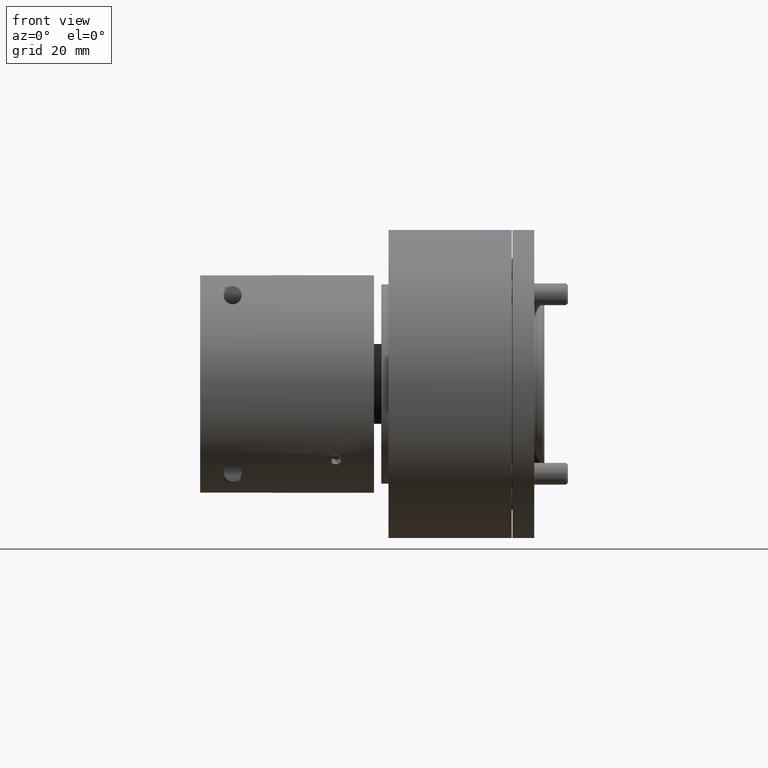
[diagram: clean part render]
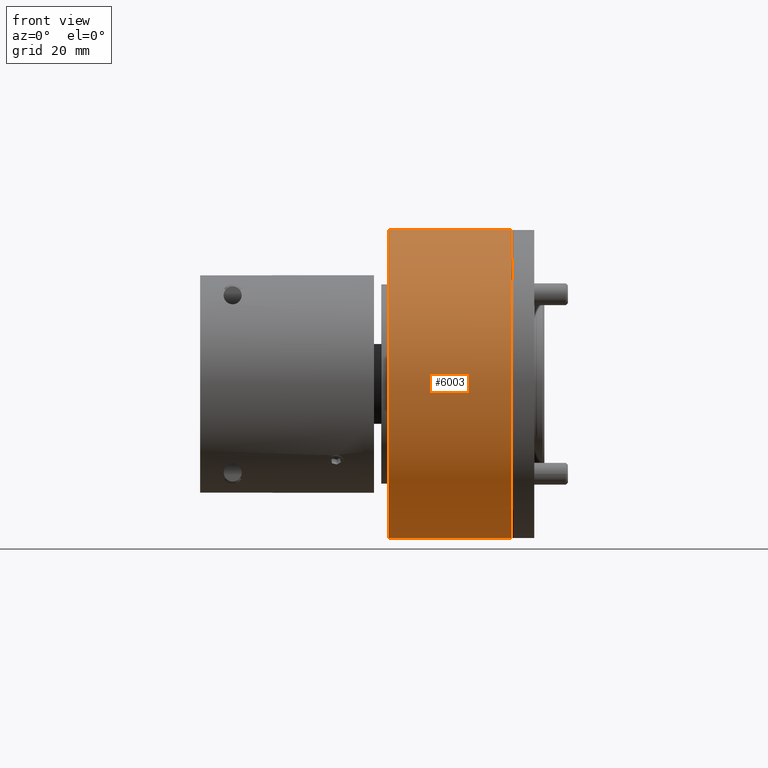
[diagram: same view with one face highlighted and labeled with its STEP entity id]
A machine part, front view. The second image highlights one B-rep face of the part: STEP entity #6003.
In plain terms, the highlighted cylindrical surface (partial cylindrical patch) has radius 42.5 mm, axis along (1, -0, 0).
Its self-contained STEP definition (entity closure, byte-faithful):
#1442 = CARTESIAN_POINT ( 'NONE',  ( 36.79999999999999716, 0.000000000000000000, 42.50000000000000000 ) ) ;
#1511 = AXIS2_PLACEMENT_3D ( 'NONE', #13622, #10612, #18260 ) ;
#1618 = VERTEX_POINT ( 'NONE', #1442 ) ;
#1980 = EDGE_CURVE ( 'NONE', #1618, #7163, #3476, .T. ) ;
#2029 = VECTOR ( 'NONE', #16698, 1000.000000000000000 ) ;
#2274 = VECTOR ( 'NONE', #9483, 1000.000000000000000 ) ;
#3160 = CIRCLE ( 'NONE', #10485, 42.50000000000000000 ) ;
#3313 = CARTESIAN_POINT ( 'NONE',  ( -39.25928614081220047, 5.204748896376250896E-15, -42.50000000000000000 ) ) ;
#3476 = LINE ( 'NONE', #16951, #2274 ) ;
#4515 = AXIS2_PLACEMENT_3D ( 'NONE', #14881, #15276, #16821 ) ;
#5068 = ORIENTED_EDGE ( 'NONE', *, *, #11164, .F. ) ;
#6003 = ADVANCED_FACE ( 'NONE', ( #13732 ), #14210, .T. ) ;
#7027 = CARTESIAN_POINT ( 'NONE',  ( 36.79999999999999716, 5.204748896376250896E-15, -42.50000000000000000 ) ) ;
#7163 = VERTEX_POINT ( 'NONE', #9914 ) ;
#7830 = ORIENTED_EDGE ( 'NONE', *, *, #15096, .F. ) ;
#8285 = DIRECTION ( 'NONE',  ( 0.000000000000000000, 0.000000000000000000, 1.000000000000000000 ) ) ;
#8755 = VERTEX_POINT ( 'NONE', #7027 ) ;
#9483 = DIRECTION ( 'NONE',  ( -1.000000000000000000, -0.000000000000000000, -0.000000000000000000 ) ) ;
#9566 = CARTESIAN_POINT ( 'NONE',  ( 2.799999999999997158, 0.000000000000000000, 0.000000000000000000 ) ) ;
#9713 = EDGE_LOOP ( 'NONE', ( #5068, #15694, #10984, #7830 ) ) ;
#9914 = CARTESIAN_POINT ( 'NONE',  ( 2.799999999999997158, 0.000000000000000000, 42.50000000000000000 ) ) ;
#10485 = AXIS2_PLACEMENT_3D ( 'NONE', #9566, #17231, #8285 ) ;
#10612 = DIRECTION ( 'NONE',  ( -1.000000000000000000, -0.000000000000000000, -0.000000000000000000 ) ) ;
#10904 = VERTEX_POINT ( 'NONE', #12954 ) ;
#10984 = ORIENTED_EDGE ( 'NONE', *, *, #1980, .T. ) ;
#11164 = EDGE_CURVE ( 'NONE', #8755, #10904, #18967, .T. ) ;
#11178 = EDGE_CURVE ( 'NONE', #8755, #1618, #18011, .T. ) ;
#12954 = CARTESIAN_POINT ( 'NONE',  ( 2.799999999999997158, 5.204748896376250896E-15, -42.50000000000000000 ) ) ;
#13622 = CARTESIAN_POINT ( 'NONE',  ( 36.79999999999999716, 0.000000000000000000, 0.000000000000000000 ) ) ;
#13732 = FACE_OUTER_BOUND ( 'NONE', #9713, .T. ) ;
#14210 = CYLINDRICAL_SURFACE ( 'NONE', #4515, 42.50000000000000000 ) ;
#14881 = CARTESIAN_POINT ( 'NONE',  ( -39.25928614081220047, 0.000000000000000000, 0.000000000000000000 ) ) ;
#15096 = EDGE_CURVE ( 'NONE', #10904, #7163, #3160, .T. ) ;
#15276 = DIRECTION ( 'NONE',  ( -1.000000000000000000, -0.000000000000000000, -0.000000000000000000 ) ) ;
#15694 = ORIENTED_EDGE ( 'NONE', *, *, #11178, .T. ) ;
#16698 = DIRECTION ( 'NONE',  ( -1.000000000000000000, -0.000000000000000000, -0.000000000000000000 ) ) ;
#16821 = DIRECTION ( 'NONE',  ( 0.000000000000000000, 0.000000000000000000, 1.000000000000000000 ) ) ;
#16951 = CARTESIAN_POINT ( 'NONE',  ( -39.25928614081220047, 0.000000000000000000, 42.50000000000000000 ) ) ;
#17231 = DIRECTION ( 'NONE',  ( -1.000000000000000000, -0.000000000000000000, -0.000000000000000000 ) ) ;
#18011 = CIRCLE ( 'NONE', #1511, 42.50000000000000000 ) ;
#18260 = DIRECTION ( 'NONE',  ( 0.000000000000000000, 0.000000000000000000, 1.000000000000000000 ) ) ;
#18967 = LINE ( 'NONE', #3313, #2029 ) ;